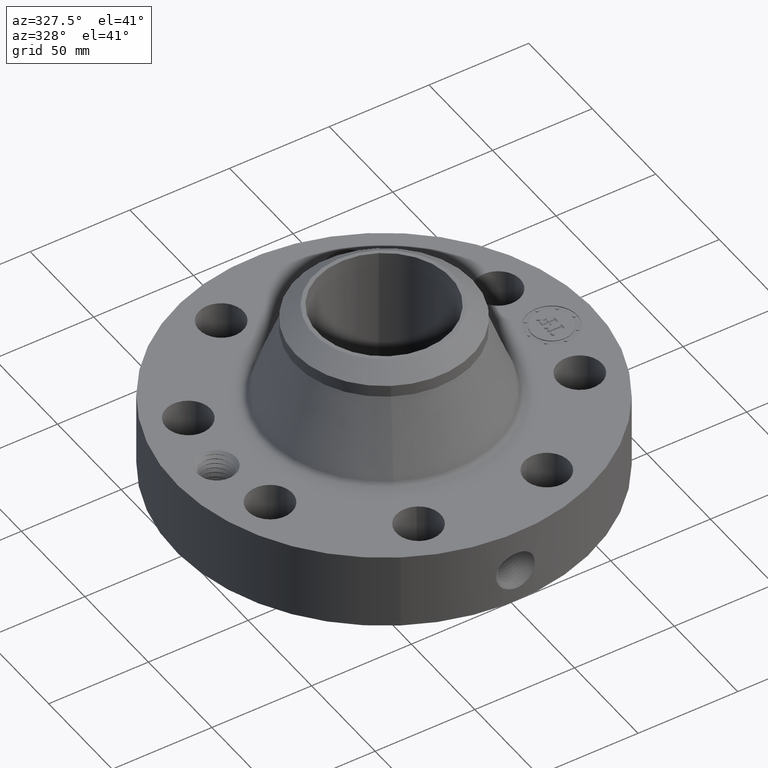
[diagram: clean part render]
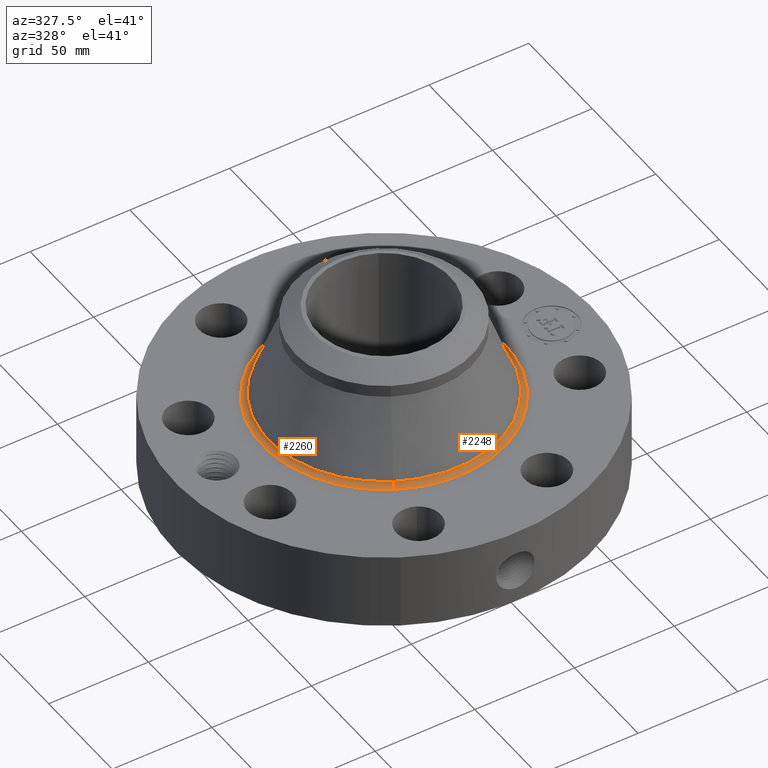
[diagram: same view with one multi-face feature highlighted, each face labeled with its STEP entity id]
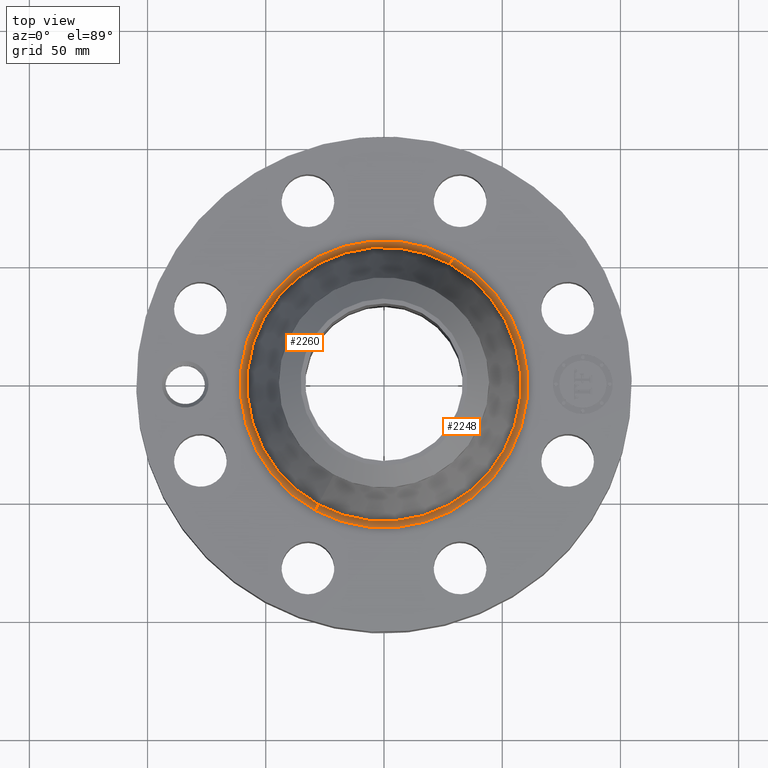
[diagram: same view with one multi-face feature highlighted, each face labeled with its STEP entity id]
A machine part, auxiliary view. The highlighted faces form ONE feature: a constant-radius fillet chain: 2 tangent blend faces with common blend radius 3.048 mm. The faces share edges in the B-rep.
A second angle (top view) of the same feature is appended — it is thin or edge-on in the first view.
Their STEP definitions:
[1] entity #2260 (Torus):
#559=AXIS2_PLACEMENT_3D('Circle Axis2P3D',#557,#558,$) ;
#2221=AXIS2_PLACEMENT_3D('Torus Axis2P3D',#2218,#2219,#2220) ;
#2225=AXIS2_PLACEMENT_3D('Circle Axis2P3D',#2223,#2224,$) ;
#2239=AXIS2_PLACEMENT_3D('Circle Axis2P3D',#2237,#2238,$) ;
#2251=AXIS2_PLACEMENT_3D('Circle Axis2P3D',#2249,#2250,$) ;
#557=CARTESIAN_POINT('Axis2P3D Location',(0.,0.,1.75000000001)) ;
#561=CARTESIAN_POINT('Vertex',(-1.14729295051,-2.10010565911,1.75000000001)) ;
#563=CARTESIAN_POINT('Vertex',(1.14729295051,2.10010565911,1.75000000001)) ;
#2218=CARTESIAN_POINT('Axis2P3D Location',(0.,0.,1.87000000001)) ;
#2223=CARTESIAN_POINT('Axis2P3D Location',(1.14729295051,2.10010565911,1.87000000001)) ;
#2227=CARTESIAN_POINT('Vertex',(1.09344827404,2.00154363996,1.82773560366)) ;
#2234=CARTESIAN_POINT('Vertex',(-1.09344827404,-2.00154363996,1.82773560366)) ;
#2237=CARTESIAN_POINT('Axis2P3D Location',(-1.14729295051,-2.10010565911,1.87000000001)) ;
#2249=CARTESIAN_POINT('Axis2P3D Location',(0.,0.,1.82773560366)) ;
#558=DIRECTION('Axis2P3D Direction',(0.,0.,-0.0393700787402)) ;
#2219=DIRECTION('Axis2P3D Direction',(0.,0.,-0.0393700787402)) ;
#2220=DIRECTION('Axis2P3D XDirection',(-0.0188750212049,-0.0345504945626,0.)) ;
#2224=DIRECTION('Axis2P3D Direction',(-0.0345504945626,0.0188750212049,0.)) ;
#2238=DIRECTION('Axis2P3D Direction',(0.0345504945626,-0.0188750212049,0.)) ;
#2250=DIRECTION('Axis2P3D Direction',(0.,0.,-0.0393700787402)) ;
#2255=ORIENTED_EDGE('',*,*,#565,.F.) ;
#2256=ORIENTED_EDGE('',*,*,#2241,.T.) ;
#2257=ORIENTED_EDGE('',*,*,#2253,.T.) ;
#2258=ORIENTED_EDGE('',*,*,#2229,.F.) ;
#2260=ADVANCED_FACE('PartBody',(#2259),#2222,.F.) ;
#560=CIRCLE('generated circle',#559,2.39305764529) ;
#2226=CIRCLE('generated circle',#2225,0.12) ;
#2240=CIRCLE('generated circle',#2239,0.12) ;
#2252=CIRCLE('generated circle',#2251,2.28074682301) ;
#2222=TOROIDAL_SURFACE('homeo Torus',#2221,2.39305764529,0.12) ;
#565=EDGE_CURVE('',#562,#564,#560,.T.) ;
#2229=EDGE_CURVE('',#564,#2228,#2226,.T.) ;
#2241=EDGE_CURVE('',#562,#2235,#2240,.T.) ;
#2253=EDGE_CURVE('',#2235,#2228,#2252,.T.) ;
#2254=EDGE_LOOP('',(#2255,#2256,#2257,#2258)) ;
#2259=FACE_OUTER_BOUND('',#2254,.T.) ;
#562=VERTEX_POINT('',#561) ;
#564=VERTEX_POINT('',#563) ;
#2228=VERTEX_POINT('',#2227) ;
#2235=VERTEX_POINT('',#2234) ;
[2] entity #2248 (Torus):
#568=AXIS2_PLACEMENT_3D('Circle Axis2P3D',#566,#567,$) ;
#2221=AXIS2_PLACEMENT_3D('Torus Axis2P3D',#2218,#2219,#2220) ;
#2225=AXIS2_PLACEMENT_3D('Circle Axis2P3D',#2223,#2224,$) ;
#2232=AXIS2_PLACEMENT_3D('Circle Axis2P3D',#2230,#2231,$) ;
#2239=AXIS2_PLACEMENT_3D('Circle Axis2P3D',#2237,#2238,$) ;
#561=CARTESIAN_POINT('Vertex',(-1.14729295051,-2.10010565911,1.75000000001)) ;
#563=CARTESIAN_POINT('Vertex',(1.14729295051,2.10010565911,1.75000000001)) ;
#566=CARTESIAN_POINT('Axis2P3D Location',(0.,0.,1.75000000001)) ;
#2218=CARTESIAN_POINT('Axis2P3D Location',(0.,0.,1.87000000001)) ;
#2223=CARTESIAN_POINT('Axis2P3D Location',(1.14729295051,2.10010565911,1.87000000001)) ;
#2227=CARTESIAN_POINT('Vertex',(1.09344827404,2.00154363996,1.82773560366)) ;
#2230=CARTESIAN_POINT('Axis2P3D Location',(0.,0.,1.82773560366)) ;
#2234=CARTESIAN_POINT('Vertex',(-1.09344827404,-2.00154363996,1.82773560366)) ;
#2237=CARTESIAN_POINT('Axis2P3D Location',(-1.14729295051,-2.10010565911,1.87000000001)) ;
#567=DIRECTION('Axis2P3D Direction',(0.,0.,-0.0393700787402)) ;
#2219=DIRECTION('Axis2P3D Direction',(0.,0.,-0.0393700787402)) ;
#2220=DIRECTION('Axis2P3D XDirection',(-0.0188750212049,-0.0345504945626,0.)) ;
#2224=DIRECTION('Axis2P3D Direction',(-0.0345504945626,0.0188750212049,0.)) ;
#2231=DIRECTION('Axis2P3D Direction',(0.,0.,-0.0393700787402)) ;
#2238=DIRECTION('Axis2P3D Direction',(0.0345504945626,-0.0188750212049,0.)) ;
#2243=ORIENTED_EDGE('',*,*,#570,.F.) ;
#2244=ORIENTED_EDGE('',*,*,#2229,.T.) ;
#2245=ORIENTED_EDGE('',*,*,#2236,.T.) ;
#2246=ORIENTED_EDGE('',*,*,#2241,.F.) ;
#2248=ADVANCED_FACE('PartBody',(#2247),#2222,.F.) ;
#569=CIRCLE('generated circle',#568,2.39305764529) ;
#2226=CIRCLE('generated circle',#2225,0.12) ;
#2233=CIRCLE('generated circle',#2232,2.28074682301) ;
#2240=CIRCLE('generated circle',#2239,0.12) ;
#2222=TOROIDAL_SURFACE('homeo Torus',#2221,2.39305764529,0.12) ;
#570=EDGE_CURVE('',#564,#562,#569,.T.) ;
#2229=EDGE_CURVE('',#564,#2228,#2226,.T.) ;
#2236=EDGE_CURVE('',#2228,#2235,#2233,.T.) ;
#2241=EDGE_CURVE('',#562,#2235,#2240,.T.) ;
#2242=EDGE_LOOP('',(#2243,#2244,#2245,#2246)) ;
#2247=FACE_OUTER_BOUND('',#2242,.T.) ;
#562=VERTEX_POINT('',#561) ;
#564=VERTEX_POINT('',#563) ;
#2228=VERTEX_POINT('',#2227) ;
#2235=VERTEX_POINT('',#2234) ;